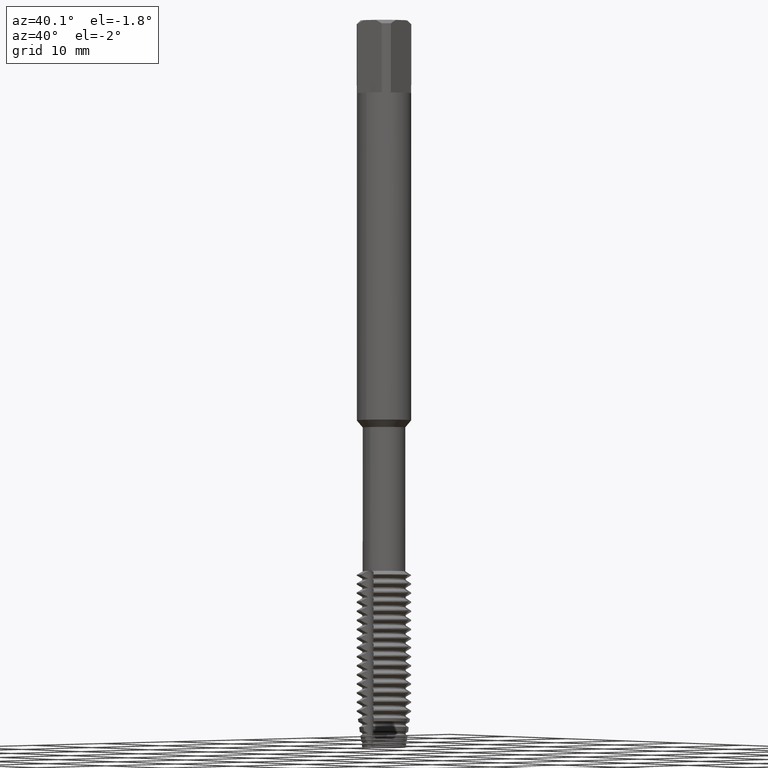
[diagram: clean part render]
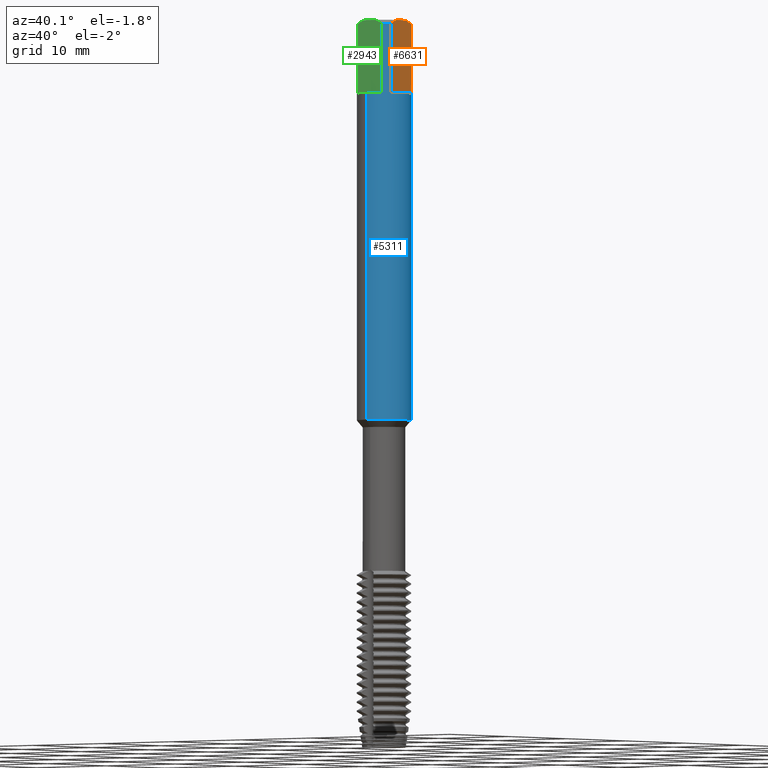
[diagram: same view with three faces highlighted in distinct colors, each labeled with its STEP entity id]
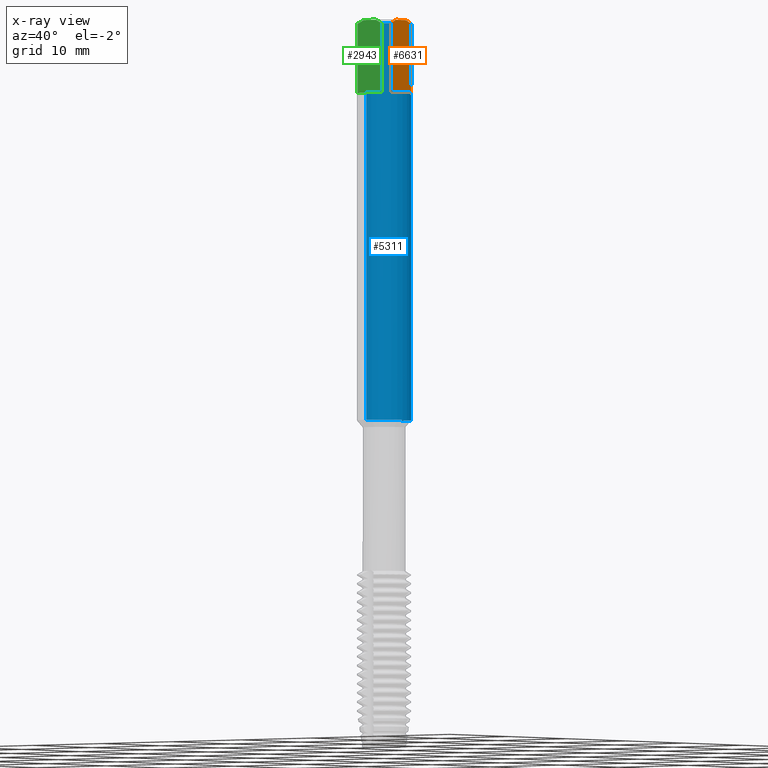
[diagram: x-ray of the same camera — body ghosted, the three highlighted faces saturated]
A machine part, auxiliary view with three faces highlighted in distinct colors.
The next image is the same camera in x-ray (body ghosted, the three faces saturated) — at least one of them is partly hidden behind the body in this view.
Their STEP definitions:

[orange] entity #6631 — the highlighted planar face has unit normal (1, 0, 0).
#2647=VERTEX_POINT('',#7434);
#2735=EDGE_CURVE('',#5607,#4167,#7531,.T.);
#3007=EDGE_CURVE('',#2647,#5597,#7829,.T.);
#4167=VERTEX_POINT('',#9098);
#4569=EDGE_CURVE('',#6753,#2647,#9531,.T.);
#5597=VERTEX_POINT('',#10651);
#5607=VERTEX_POINT('',#10662);
#6303=EDGE_CURVE('',#4167,#6753,#11423,.T.);
#6387=VERTEX_POINT('',#11518);
#6631=ADVANCED_FACE('',(#11783),#11784,.T.);
#6753=VERTEX_POINT('',#11919);
#6759=EDGE_CURVE('',#6387,#5607,#11926,.T.);
#6873=EDGE_CURVE('',#5597,#6387,#12048,.T.);
#7434=CARTESIAN_POINT('',(2.45,-1.73132896931808,-8.0));
#7531=(B_SPLINE_CURVE(2,(#13016,#13017,#13018),.UNSPECIFIED.,.F.,.F.)B_SPLINE_CURVE_WITH_KNOTS((3,3),(0.0,0.950549192151453),.UNSPECIFIED.)RATIONAL_B_SPLINE_CURVE((1.0,1.01203284912645,1.0))BOUNDED_CURVE()REPRESENTATION_ITEM('')GEOMETRIC_REPRESENTATION_ITEM()CURVE());
#7829=LINE('',#13509,#13510);
#9098=CARTESIAN_POINT('',(2.45,1.73132896931808,-0.399999999999999));
#9531=LINE('',#16563,#16564);
#10651=CARTESIAN_POINT('',(2.45,-1.73132896931808,-0.399999999999999));
#10662=CARTESIAN_POINT('',(2.45,0.87034475927646,0.0));
#11423=LINE('',#19878,#19879);
#11518=CARTESIAN_POINT('',(2.45,-0.87034475927646,0.0));
#11783=FACE_OUTER_BOUND('',#20474,.T.);
#11784=PLANE('',#20475);
#11919=CARTESIAN_POINT('',(2.45,1.73132896931808,-8.0));
#11926=LINE('',#20708,#20709);
#12048=(B_SPLINE_CURVE(2,(#20928,#20929,#20930),.UNSPECIFIED.,.F.,.F.)B_SPLINE_CURVE_WITH_KNOTS((3,3),(0.0,0.950549192151453),.UNSPECIFIED.)RATIONAL_B_SPLINE_CURVE((1.0,1.01203284912645,1.0))BOUNDED_CURVE()REPRESENTATION_ITEM('')GEOMETRIC_REPRESENTATION_ITEM()CURVE());
#13016=CARTESIAN_POINT('',(2.45,0.870344759276449,1.11022302462516E-016));
#13017=CARTESIAN_POINT('',(2.45,1.27008742822434,-0.133813052683839));
#13018=CARTESIAN_POINT('',(2.45,1.73132896931807,-0.399999999999998));
#13509=CARTESIAN_POINT('',(2.45,-1.73132896931808,-4.2));
#13510=VECTOR('',#22484,1.0);
#16563=CARTESIAN_POINT('',(2.45,0.0,-8.0));
#16564=VECTOR('',#24278,1.0);
#19878=CARTESIAN_POINT('',(2.45,1.73132896931808,-4.2));
#19879=VECTOR('',#26313,1.0);
#20474=EDGE_LOOP('',(#26700,#26701,#26702,#26703,#26704,#26705));
#20475=AXIS2_PLACEMENT_3D('',#26706,#26707,#26708);
#20708=CARTESIAN_POINT('',(2.45,0.65,0.0));
#20709=VECTOR('',#26891,1.0);
#20928=CARTESIAN_POINT('',(2.45,-1.73132896931807,-0.399999999999998));
#20929=CARTESIAN_POINT('',(2.45,-1.27008742822434,-0.133813052683839));
#20930=CARTESIAN_POINT('',(2.45,-0.870344759276449,1.11022302462516E-016));
#22484=DIRECTION('',(-0.0,-0.0,1.0));
#24278=DIRECTION('',(0.0,-1.0,0.0));
#26313=DIRECTION('',(0.0,0.0,-1.0));
#26700=ORIENTED_EDGE('',*,*,#6303,.F.);
#26701=ORIENTED_EDGE('',*,*,#2735,.F.);
#26702=ORIENTED_EDGE('',*,*,#6759,.F.);
#26703=ORIENTED_EDGE('',*,*,#6873,.F.);
#26704=ORIENTED_EDGE('',*,*,#3007,.F.);
#26705=ORIENTED_EDGE('',*,*,#4569,.F.);
#26706=CARTESIAN_POINT('',(2.45,0.0,-3.5));
#26707=DIRECTION('',(1.0,0.0,0.0));
#26708=DIRECTION('',(0.0,0.0,-1.0));
#26891=DIRECTION('',(-0.0,1.0,0.0));

[blue] entity #5311 — the highlighted cylindrical surface (edge-blend (fillet) strip) has radius 3 mm, axis along (-0, -0, 1).
#2559=VERTEX_POINT('',#7339);
#2647=VERTEX_POINT('',#7434);
#2671=VERTEX_POINT('',#7461);
#2715=EDGE_CURVE('',#3203,#2559,#7509,.T.);
#2777=EDGE_CURVE('',#3161,#5751,#7575,.T.);
#2785=VERTEX_POINT('',#7584);
#2965=VERTEX_POINT('',#7782);
#3007=EDGE_CURVE('',#2647,#5597,#7829,.T.);
#3063=EDGE_CURVE('',#3417,#6125,#7892,.T.);
#3161=VERTEX_POINT('',#7998);
#3203=VERTEX_POINT('',#8044);
#3221=VERTEX_POINT('',#8066);
#3417=VERTEX_POINT('',#8277);
#3955=EDGE_CURVE('',#2785,#3221,#8871,.T.);
#4003=EDGE_CURVE('',#2965,#4579,#8921,.T.);
#4167=VERTEX_POINT('',#9098);
#4205=EDGE_CURVE('',#4453,#4405,#9142,.T.);
#4225=EDGE_CURVE('',#2559,#2785,#9165,.T.);
#4327=EDGE_CURVE('',#6923,#4579,#9271,.T.);
#4405=VERTEX_POINT('',#9354);
#4453=VERTEX_POINT('',#9406);
#4579=VERTEX_POINT('',#9541);
#5159=EDGE_CURVE('',#4405,#5381,#10170,.T.);
#5311=ADVANCED_FACE('',(#10336),#10337,.T.);
#5319=EDGE_CURVE('',#5597,#7041,#10345,.T.);
#5381=VERTEX_POINT('',#10412);
#5597=VERTEX_POINT('',#10651);
#5727=EDGE_CURVE('',#3161,#2671,#10792,.T.);
#5751=VERTEX_POINT('',#10818);
#6083=EDGE_CURVE('',#4453,#3221,#11180,.T.);
#6125=VERTEX_POINT('',#11226);
#6147=EDGE_CURVE('',#5381,#4167,#11252,.T.);
#6253=EDGE_CURVE('',#5751,#2965,#11367,.T.);
#6303=EDGE_CURVE('',#4167,#6753,#11423,.T.);
#6321=EDGE_CURVE('',#7041,#6923,#11444,.T.);
#6345=EDGE_CURVE('',#6753,#2647,#11470,.T.);
#6513=EDGE_CURVE('',#6125,#3203,#11654,.T.);
#6725=EDGE_CURVE('',#2671,#3417,#11890,.T.);
#6753=VERTEX_POINT('',#11919);
#6923=VERTEX_POINT('',#12100);
#7041=VERTEX_POINT('',#12230);
#7339=CARTESIAN_POINT('',(0.802326039087946,2.89072186953388,-38.8090290618892));
#7434=CARTESIAN_POINT('',(2.45,-1.73132896931808,-8.0));
#7461=CARTESIAN_POINT('',(0.174061876221498,2.99494615364722,-40.2998997394137));
#7509=LINE('',#12979,#12980);
#7575=LINE('',#13098,#13099);
#7584=CARTESIAN_POINT('',(0.479659035830618,2.96140628913799,-38.5000001661238));
#7782=CARTESIAN_POINT('',(3.67381906146713E-016,-3.0,-44.0));
#7829=LINE('',#13509,#13510);
#7892=LINE('',#13595,#13596);
#7998=CARTESIAN_POINT('',(1.02911540261998E-015,2.99999999999999,-40.318615216062));
#8044=CARTESIAN_POINT('',(0.802326039087947,2.89072186953388,-39.8740994201954));
#8066=CARTESIAN_POINT('',(-1.1292194788514E-014,3.0,-39.1139612870646));
#8277=CARTESIAN_POINT('',(0.524136469055374,2.95385865636902,-39.2919358957655));
#8871=B_SPLINE_CURVE_WITH_KNOTS('',3,(#15318,#15319,#15320,#15321,#15322,#15323,#15324,#15325,#15326,#15327,#15328,#15329,#15330,#15331,#15332,#15333,#15334,#15335,#15336,#15337,#15338,#15339,#15340,#15341,#15342,#15343,#15344),.UNSPECIFIED.,.F.,.F.,(4,2,3,2,2,2,2,2,2,2,2,2,4),(-0.325491662881047,-0.162745831440524,0.0,0.162745831440523,0.325491662881047,0.48857928896217,0.651666915043293,0.814181075788761,0.97669523653423,1.13937860219068,1.30206196784712,1.46474533350356,1.62742869916001),.UNSPECIFIED.);
#8921=LINE('',#15451,#15452);
#9098=CARTESIAN_POINT('',(2.45,1.73132896931808,-0.399999999999999));
#9142=CIRCLE('',#15883,3.0);
#9165=B_SPLINE_CURVE_WITH_KNOTS('',3,(#15914,#15915,#15916,#15917,#15918,#15919),.UNSPECIFIED.,.F.,.F.,(4,2,4),(0.37107796654128,0.74215593308256,1.11285058772105),.UNSPECIFIED.);
#9271=CIRCLE('',#16093,3.0);
#9354=CARTESIAN_POINT('',(1.73132896931808,2.45,-8.0));
#9406=CARTESIAN_POINT('',(-3.67381906146713E-016,3.0,-8.0));
#9541=CARTESIAN_POINT('',(3.67381906146713E-016,-3.0,-8.0));
#10170=LINE('',#17671,#17672);
#10336=FACE_OUTER_BOUND('',#17935,.T.);
#10337=CYLINDRICAL_SURFACE('',#17936,3.0);
#10345=CIRCLE('',#17956,3.0);
#10412=CARTESIAN_POINT('',(1.73132896931808,2.45,-0.399999999999999));
#10651=CARTESIAN_POINT('',(2.45,-1.73132896931808,-0.399999999999999));
#10792=B_SPLINE_CURVE_WITH_KNOTS('',3,(#18775,#18776,#18777,#18778,#18779,#18780,#18781,#18782,#18783,#18784),.UNSPECIFIED.,.F.,.F.,(4,2,2,2,4),(3.33952438176389,3.71068639626914,4.08193290438485,4.45317941250055,4.82387408804259),.UNSPECIFIED.);
#10818=CARTESIAN_POINT('',(0.0,3.0,-44.0));
#11180=LINE('',#19476,#19477);
#11226=CARTESIAN_POINT('',(0.524136469055373,2.95385865636902,-40.1552411074919));
#11252=CIRCLE('',#19582,3.0);
#11367=CIRCLE('',#19795,3.0);
#11423=LINE('',#19878,#19879);
#11444=LINE('',#19906,#19907);
#11470=CIRCLE('',#19951,3.0);
#11654=B_SPLINE_CURVE_WITH_KNOTS('',3,(#20227,#20228,#20229,#20230,#20231,#20232),.UNSPECIFIED.,.F.,.F.,(4,2,4),(4.82387363034724,5.19456827247255,5.56564622611886),.UNSPECIFIED.);
#11890=ELLIPSE('',#20637,9.14398372010932,3.0);
#11919=CARTESIAN_POINT('',(2.45,1.73132896931808,-8.0));
#12100=CARTESIAN_POINT('',(1.73132896931808,-2.45,-8.0));
#12230=CARTESIAN_POINT('',(1.73132896931808,-2.45,-0.399999999999999));
#12979=CARTESIAN_POINT('',(0.802326039087947,2.89072186953388,-39.3415642410423));
#12980=VECTOR('',#21997,1.0);
#13098=CARTESIAN_POINT('',(-3.67381906146713E-016,3.0,-22.2));
#13099=VECTOR('',#22210,1.0);
#13509=CARTESIAN_POINT('',(2.45,-1.73132896931808,-4.2));
#13510=VECTOR('',#22484,1.0);
#13595=CARTESIAN_POINT('',(0.524136469055374,2.95385865636902,-39.7235885016287));
#13596=VECTOR('',#22569,1.0);
#15318=CARTESIAN_POINT('',(0.399073662054701,2.9733382270193,-38.3881578074487));
#15319=CARTESIAN_POINT('',(0.437241118172757,2.96821549111729,-38.4263666363942));
#15320=CARTESIAN_POINT('',(0.470378499662075,2.96297848846858,-38.4747661621587));
#15321=CARTESIAN_POINT('',(0.514381160077739,2.95565719997762,-38.5809468503984));
#15322=CARTESIAN_POINT('',(0.525240588713139,2.95366252709552,-38.6387365970719));
#15323=CARTESIAN_POINT('',(0.525240588713139,2.95366252709552,-38.6929852075521));
#15324=CARTESIAN_POINT('',(0.525240588713139,2.95366252709552,-38.7472338180322));
#15325=CARTESIAN_POINT('',(0.514381160077739,2.95565719997762,-38.8050235647058));
#15326=CARTESIAN_POINT('',(0.470378499662075,2.96297848846858,-38.9112042529454));
#15327=CARTESIAN_POINT('',(0.437241118172758,2.96821549111729,-38.95960377871));
#15328=CARTESIAN_POINT('',(0.360826047619651,2.97847172156046,-39.0361016818081));
#15329=CARTESIAN_POINT('',(0.312384718269332,2.98416839722865,-39.0693131706837));
#15330=CARTESIAN_POINT('',(0.206102293488516,2.99338722515065,-39.1134202069633));
#15331=CARTESIAN_POINT('',(0.148251731896476,2.99682777449178,-39.1243099616648));
#15332=CARTESIAN_POINT('',(0.0397709987252813,3.00022545933147,-39.1243099616648));
#15333=CARTESIAN_POINT('',(-0.0179912012444218,3.00041652694693,-39.1134886213906));
#15334=CARTESIAN_POINT('',(-0.124225517538505,2.99789776999505,-39.0694963705132));
#15335=CARTESIAN_POINT('',(-0.172700489972417,2.99527068292401,-39.0363276588386));
#15336=CARTESIAN_POINT('',(-0.249281669772502,2.9898718432363,-38.9597995158294));
#15337=CARTESIAN_POINT('',(-0.282493736677514,2.98675204362553,-38.9113123678398));
#15338=CARTESIAN_POINT('',(-0.326558647658045,2.98225584656319,-38.8050214521099));
#15339=CARTESIAN_POINT('',(-0.337408919512348,2.9809654847102,-38.7472129961042));
#15340=CARTESIAN_POINT('',(-0.337408919512347,2.9809654847102,-38.6387574189999));
#15341=CARTESIAN_POINT('',(-0.326558647658045,2.98225584656319,-38.5809489629942));
#15342=CARTESIAN_POINT('',(-0.282493736677516,2.98675204362553,-38.4746580472644));
#15343=CARTESIAN_POINT('',(-0.2492816697725,2.9898718432363,-38.4261708992748));
#15344=CARTESIAN_POINT('',(-0.210971156732432,2.9925726676268,-38.387886918428));
#15451=CARTESIAN_POINT('',(3.67381906146713E-016,-3.0,-22.2));
#15452=VECTOR('',#23672,1.0);
#15883=AXIS2_PLACEMENT_3D('',#23915,#23916,#23917);
#15914=CARTESIAN_POINT('',(0.885267806757017,2.86640906193091,-38.9663327006887));
#15915=CARTESIAN_POINT('',(0.835257364243698,2.88185438127597,-38.8460769466886));
#15916=CARTESIAN_POINT('',(0.760180789012212,2.90344206972957,-38.7367632829805));
#15917=CARTESIAN_POINT('',(0.587589839319659,2.9432248732203,-38.5642350710499));
#15918=CARTESIAN_POINT('',(0.478286561023013,2.96410351776529,-38.4891862553258));
#15919=CARTESIAN_POINT('',(0.358041915481556,2.97855770243893,-38.4392072565724));
#16093=AXIS2_PLACEMENT_3D('',#24027,#24028,#24029);
#17671=CARTESIAN_POINT('',(1.73132896931808,2.45,-4.2));
#17672=VECTOR('',#24951,1.0);
#17935=EDGE_LOOP('',(#25106,#25107,#25108,#25109,#25110,#25111,#25112,#25113,#25114,#25115,#25116,#25117,#25118,#25119,#25120,#25121,#25122,#25123,#25124,#25125));
#17936=AXIS2_PLACEMENT_3D('',#25126,#25127,#25128);
#17956=AXIS2_PLACEMENT_3D('',#25133,#25134,#25135);
#18775=CARTESIAN_POINT('',(-0.919321134391312,2.85566956279284,-39.7167514643836));
#18776=CARTESIAN_POINT('',(-0.869340333826626,2.87175979045446,-39.8369526818478));
#18777=CARTESIAN_POINT('',(-0.7943367658771,2.89428729416518,-39.946180348735));
#18778=CARTESIAN_POINT('',(-0.62190649826245,2.93617195165647,-40.1186756687858));
#18779=CARTESIAN_POINT('',(-0.512637169305662,2.95836427575571,-40.1937653794614));
#18780=CARTESIAN_POINT('',(-0.272101743389447,2.99009643596645,-40.2938340938058));
#18781=CARTESIAN_POINT('',(-0.140764146727553,2.99924977776393,-40.3187634001052));
#18782=CARTESIAN_POINT('',(0.106545602280532,3.0006526485303,-40.3187634001052));
#18783=CARTESIAN_POINT('',(0.237797441372153,2.9930118737714,-40.2939004779081));
#18784=CARTESIAN_POINT('',(0.358042092904169,2.97855768111158,-40.2439214764374));
#19476=CARTESIAN_POINT('',(-3.67381906146713E-016,3.0,-22.2));
#19477=VECTOR('',#26016,1.0);
#19582=AXIS2_PLACEMENT_3D('',#26119,#26120,#26121);
#19795=AXIS2_PLACEMENT_3D('',#26242,#26243,#26244);
#19878=CARTESIAN_POINT('',(2.45,1.73132896931808,-4.2));
#19879=VECTOR('',#26313,1.0);
#19906=CARTESIAN_POINT('',(1.73132896931808,-2.45,-4.2));
#19907=VECTOR('',#26348,1.0);
#19951=AXIS2_PLACEMENT_3D('',#26373,#26374,#26375);
#20227=CARTESIAN_POINT('',(0.358041928866452,2.97855770082998,-40.2439212158429));
#20228=CARTESIAN_POINT('',(0.478286570305828,2.96410351610127,-40.1939422187729));
#20229=CARTESIAN_POINT('',(0.587589844864579,2.94322487202299,-40.1188934055854));
#20230=CARTESIAN_POINT('',(0.760180788580036,2.9034420697483,-39.946365199533));
#20231=CARTESIAN_POINT('',(0.835257361192053,2.88185438212673,-39.8370515395987));
#20232=CARTESIAN_POINT('',(0.885267801957581,2.86640906341317,-39.7167957897556));
#20637=AXIS2_PLACEMENT_3D('',#26854,#26855,#26856);
#21997=DIRECTION('',(-0.0,-0.0,1.0));
#22210=DIRECTION('',(0.0,0.0,-1.0));
#22484=DIRECTION('',(-0.0,-0.0,1.0));
#22569=DIRECTION('',(0.0,0.0,-1.0));
#23672=DIRECTION('',(-0.0,-0.0,1.0));
#23915=CARTESIAN_POINT('',(0.0,0.0,-8.0));
#23916=DIRECTION('',(0.0,0.0,-1.0));
#23917=DIRECTION('',(0.0,1.0,0.0));
#24027=CARTESIAN_POINT('',(0.0,0.0,-8.0));
#24028=DIRECTION('',(0.0,0.0,-1.0));
#24029=DIRECTION('',(0.0,1.0,0.0));
#24951=DIRECTION('',(-0.0,-0.0,1.0));
#25106=ORIENTED_EDGE('',*,*,#6083,.F.);
#25107=ORIENTED_EDGE('',*,*,#4205,.T.);
#25108=ORIENTED_EDGE('',*,*,#5159,.T.);
#25109=ORIENTED_EDGE('',*,*,#6147,.T.);
#25110=ORIENTED_EDGE('',*,*,#6303,.T.);
#25111=ORIENTED_EDGE('',*,*,#6345,.T.);
#25112=ORIENTED_EDGE('',*,*,#3007,.T.);
#25113=ORIENTED_EDGE('',*,*,#5319,.T.);
#25114=ORIENTED_EDGE('',*,*,#6321,.T.);
#25115=ORIENTED_EDGE('',*,*,#4327,.T.);
#25116=ORIENTED_EDGE('',*,*,#4003,.F.);
#25117=ORIENTED_EDGE('',*,*,#6253,.F.);
#25118=ORIENTED_EDGE('',*,*,#2777,.F.);
#25119=ORIENTED_EDGE('',*,*,#5727,.T.);
#25120=ORIENTED_EDGE('',*,*,#6725,.T.);
#25121=ORIENTED_EDGE('',*,*,#3063,.T.);
#25122=ORIENTED_EDGE('',*,*,#6513,.T.);
#25123=ORIENTED_EDGE('',*,*,#2715,.T.);
#25124=ORIENTED_EDGE('',*,*,#4225,.T.);
#25125=ORIENTED_EDGE('',*,*,#3955,.T.);
#25126=CARTESIAN_POINT('',(0.0,0.0,-22.2));
#25127=DIRECTION('',(-0.0,-0.0,1.0));
#25128=DIRECTION('',(0.0,1.0,0.0));
#25133=CARTESIAN_POINT('',(0.0,0.0,-0.399999999999999));
#25134=DIRECTION('',(0.0,0.0,-1.0));
#25135=DIRECTION('',(0.0,1.0,0.0));
#26016=DIRECTION('',(0.0,0.0,-1.0));
#26119=CARTESIAN_POINT('',(0.0,0.0,-0.399999999999999));
#26120=DIRECTION('',(0.0,0.0,-1.0));
#26121=DIRECTION('',(0.0,1.0,0.0));
#26242=CARTESIAN_POINT('',(0.0,0.0,-44.0));
#26243=DIRECTION('',(0.0,0.0,-1.0));
#26244=DIRECTION('',(0.0,1.0,0.0));
#26313=DIRECTION('',(0.0,0.0,-1.0));
#26348=DIRECTION('',(0.0,0.0,-1.0));
#26373=CARTESIAN_POINT('',(0.0,0.0,-8.0));
#26374=DIRECTION('',(0.0,0.0,-1.0));
#26375=DIRECTION('',(0.0,1.0,0.0));
#26854=CARTESIAN_POINT('',(0.0,0.0,-40.8010731503961));
#26855=DIRECTION('',(0.944648353914092,0.0,-0.328084573619969));
#26856=DIRECTION('',(0.328084573619969,-0.0,0.944648353914092));

[green] entity #2943 — the highlighted planar face has unit normal (0, -1, 0).
#2411=VERTEX_POINT('',#7178);
#2449=EDGE_CURVE('',#2905,#4867,#7217,.T.);
#2905=VERTEX_POINT('',#7716);
#2943=ADVANCED_FACE('',(#7758),#7759,.T.);
#2983=VERTEX_POINT('',#7801);
#4133=EDGE_CURVE('',#4867,#2411,#9060,.T.);
#4587=EDGE_CURVE('',#6923,#2983,#9550,.T.);
#4867=VERTEX_POINT('',#9847);
#4981=EDGE_CURVE('',#2983,#2905,#9969,.T.);
#6057=EDGE_CURVE('',#2411,#7041,#11153,.T.);
#6321=EDGE_CURVE('',#7041,#6923,#11444,.T.);
#6923=VERTEX_POINT('',#12100);
#7041=VERTEX_POINT('',#12230);
#7178=CARTESIAN_POINT('',(0.87034475927646,-2.45,0.0));
#7217=(B_SPLINE_CURVE(2,(#12461,#12462,#12463),.UNSPECIFIED.,.F.,.F.)B_SPLINE_CURVE_WITH_KNOTS((3,3),(0.0,0.950549192151453),.UNSPECIFIED.)RATIONAL_B_SPLINE_CURVE((1.0,1.01203284912645,1.0))BOUNDED_CURVE()REPRESENTATION_ITEM('')GEOMETRIC_REPRESENTATION_ITEM()CURVE());
#7716=CARTESIAN_POINT('',(-1.73132896931808,-2.45,-0.399999999999999));
#7758=FACE_OUTER_BOUND('',#13395,.T.);
#7759=PLANE('',#13396);
#7801=CARTESIAN_POINT('',(-1.73132896931808,-2.45,-8.0));
#9060=LINE('',#15733,#15734);
#9550=LINE('',#16595,#16596);
#9847=CARTESIAN_POINT('',(-0.87034475927646,-2.45,0.0));
#9969=LINE('',#17334,#17335);
#11153=(B_SPLINE_CURVE(2,(#19428,#19429,#19430),.UNSPECIFIED.,.F.,.F.)B_SPLINE_CURVE_WITH_KNOTS((3,3),(0.0,0.950549192151453),.UNSPECIFIED.)RATIONAL_B_SPLINE_CURVE((1.0,1.01203284912645,1.0))BOUNDED_CURVE()REPRESENTATION_ITEM('')GEOMETRIC_REPRESENTATION_ITEM()CURVE());
#11444=LINE('',#19906,#19907);
#12100=CARTESIAN_POINT('',(1.73132896931808,-2.45,-8.0));
#12230=CARTESIAN_POINT('',(1.73132896931808,-2.45,-0.399999999999999));
#12461=CARTESIAN_POINT('',(-1.73132896931807,-2.45,-0.399999999999998));
#12462=CARTESIAN_POINT('',(-1.27008742822434,-2.45,-0.133813052683839));
#12463=CARTESIAN_POINT('',(-0.870344759276449,-2.45,1.11022302462516E-016));
#13395=EDGE_LOOP('',(#22412,#22413,#22414,#22415,#22416,#22417));
#13396=AXIS2_PLACEMENT_3D('',#22418,#22419,#22420);
#15733=CARTESIAN_POINT('',(0.0,-2.45,0.0));
#15734=VECTOR('',#23807,1.0);
#16595=CARTESIAN_POINT('',(0.0,-2.45,-8.0));
#16596=VECTOR('',#24291,1.0);
#17334=CARTESIAN_POINT('',(-1.73132896931808,-2.45,-4.2));
#17335=VECTOR('',#24702,1.0);
#19428=CARTESIAN_POINT('',(0.870344759276449,-2.45,1.11022302462516E-016));
#19429=CARTESIAN_POINT('',(1.27008742822434,-2.45,-0.133813052683839));
#19430=CARTESIAN_POINT('',(1.73132896931807,-2.45,-0.399999999999998));
#19906=CARTESIAN_POINT('',(1.73132896931808,-2.45,-4.2));
#19907=VECTOR('',#26348,1.0);
#22412=ORIENTED_EDGE('',*,*,#6321,.F.);
#22413=ORIENTED_EDGE('',*,*,#6057,.F.);
#22414=ORIENTED_EDGE('',*,*,#4133,.F.);
#22415=ORIENTED_EDGE('',*,*,#2449,.F.);
#22416=ORIENTED_EDGE('',*,*,#4981,.F.);
#22417=ORIENTED_EDGE('',*,*,#4587,.F.);
#22418=CARTESIAN_POINT('',(0.0,-2.45,-3.5));
#22419=DIRECTION('',(0.0,-1.0,0.0));
#22420=DIRECTION('',(0.0,0.0,-1.0));
#23807=DIRECTION('',(1.0,0.0,0.0));
#24291=DIRECTION('',(-1.0,0.0,0.0));
#24702=DIRECTION('',(-0.0,-0.0,1.0));
#26348=DIRECTION('',(0.0,0.0,-1.0));